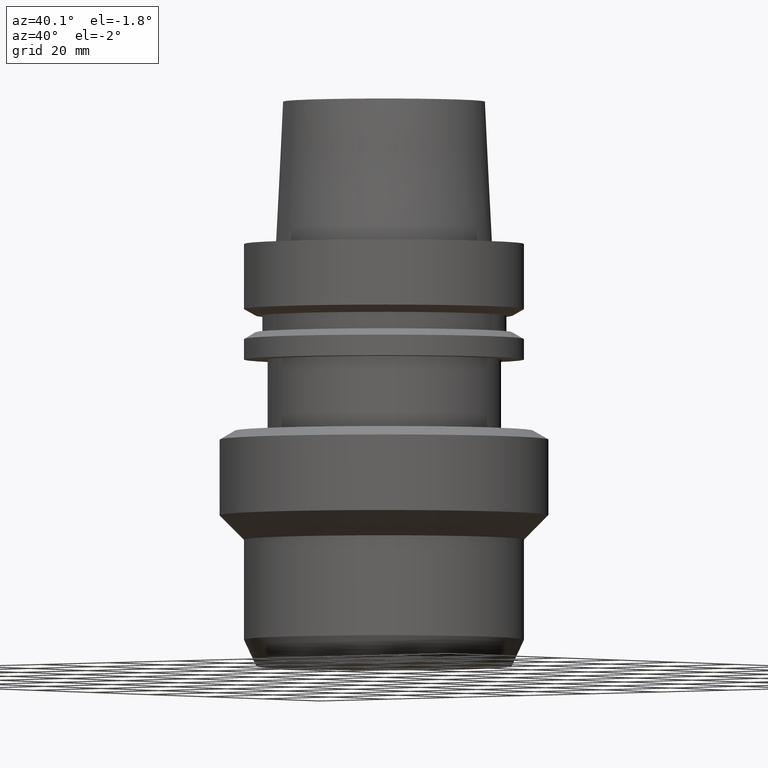
[diagram: clean part render]
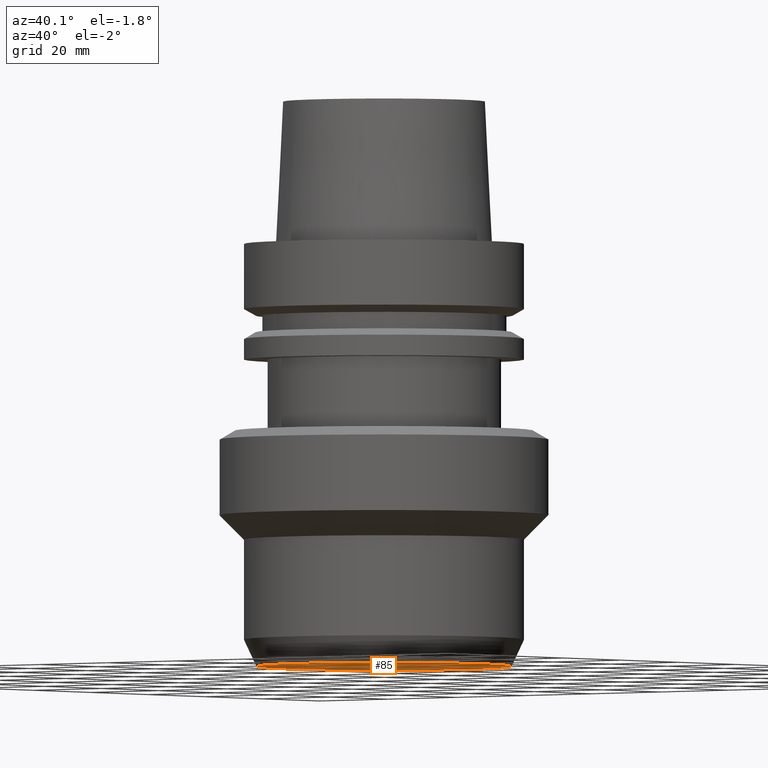
[diagram: same view with one face highlighted and labeled with its STEP entity id]
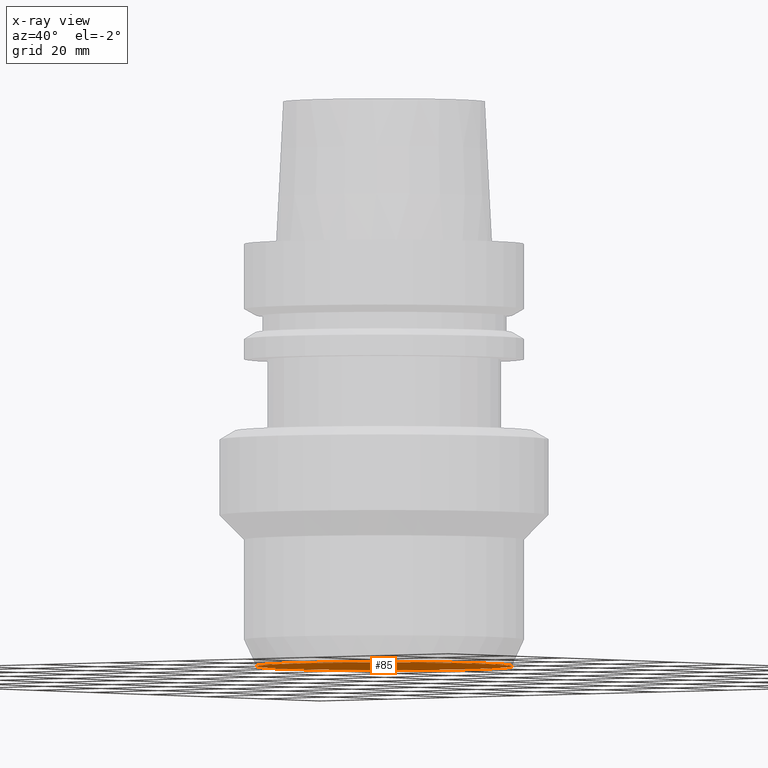
[diagram: x-ray of the same camera — body ghosted, the highlighted face saturated]
A machine part, auxiliary view. The second image highlights one B-rep face of the part: STEP entity #85.
The next image is the same camera in x-ray: the body ghosted, the highlighted face saturated — about 0% of this face is hidden behind the body in this view.
In plain terms, the highlighted planar face has unit normal (0, -0, -1).
Its self-contained STEP definition (entity closure, byte-faithful):
#85=ADVANCED_FACE('Unnamed[1]',(#209),#210,.T.);
#94=EDGE_CURVE('Unnamed[1]',#223,#223,#224,.T.);
#209=FACE_OUTER_BOUND('',#373,.T.);
#210=PLANE('',#374);
#223=VERTEX_POINT('',#391);
#224=CIRCLE('',#392,28.7021540510708);
#373=EDGE_LOOP('',(#555));
#374=AXIS2_PLACEMENT_3D('',#556,#557,#558);
#391=CARTESIAN_POINT('',(5.81707229594996E-015,28.7021540510708,-95.0000000000005));
#392=AXIS2_PLACEMENT_3D('',#571,#572,#573);
#555=ORIENTED_EDGE('',*,*,#94,.T.);
#556=CARTESIAN_POINT('',(5.81707229594994E-015,14.3510770255354,-95.0000000000002));
#557=DIRECTION('',(6.12323399573677E-017,-1.62163161923233E-014,-1.0));
#558=DIRECTION('',(9.88135833213739E-031,1.0,-1.62163161923233E-014));
#571=CARTESIAN_POINT('',(5.81707229594996E-015,1.17421509916721E-014,-95.0000000000005));
#572=DIRECTION('',(6.12323399573677E-017,7.79108829899064E-017,-1.0));
#573=DIRECTION('',(-9.59781840438566E-033,1.0,7.79108829899063E-017));